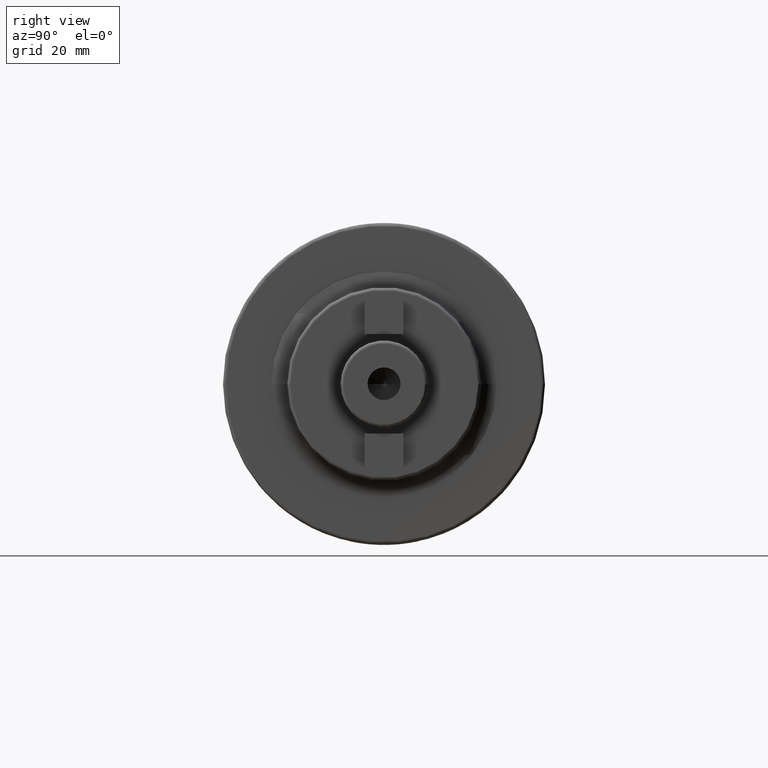
[diagram: clean part render]
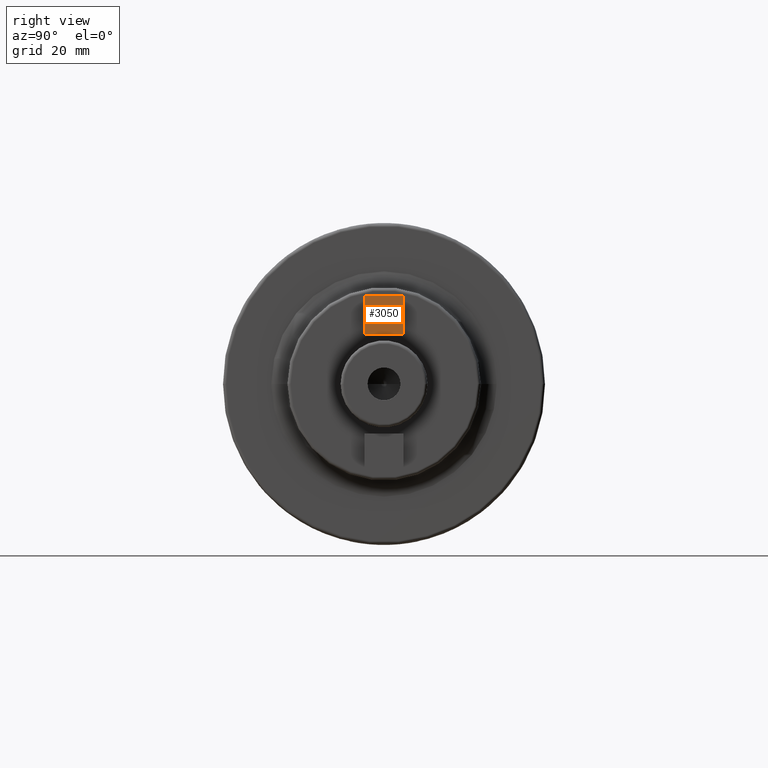
[diagram: same view with one face highlighted and labeled with its STEP entity id]
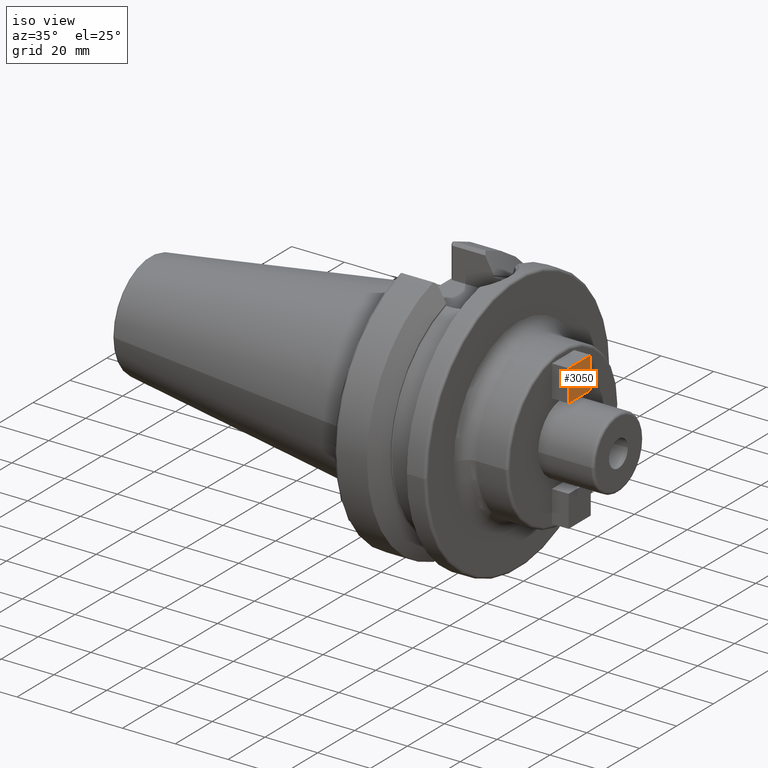
[diagram: same view with one face highlighted and labeled with its STEP entity id]
A machine part, right view. The second image highlights one B-rep face of the part: STEP entity #3050.
A second angle (iso view) of the same face is appended — the face is thin or edge-on in the first view.
In plain terms, the highlighted planar face has unit normal (1, 0, 0).
Its self-contained STEP definition (entity closure, byte-faithful):
#1050=DIRECTION('',(0.E0,0.E0,1.E0));
#1051=VECTOR('',#1050,1.2E1);
#1052=CARTESIAN_POINT('',(6.13E1,6.E0,1.55E1));
#1053=LINE('',#1052,#1051);
#1054=DIRECTION('',(0.E0,1.E0,0.E0));
#1055=VECTOR('',#1054,1.2E1);
#1056=CARTESIAN_POINT('',(6.13E1,-6.E0,1.55E1));
#1057=LINE('',#1056,#1055);
#1058=DIRECTION('',(0.E0,0.E0,-1.E0));
#1059=VECTOR('',#1058,1.2E1);
#1060=CARTESIAN_POINT('',(6.13E1,-6.E0,2.75E1));
#1061=LINE('',#1060,#1059);
#1062=DIRECTION('',(0.E0,-1.E0,0.E0));
#1063=VECTOR('',#1062,1.2E1);
#1064=CARTESIAN_POINT('',(6.13E1,6.E0,2.75E1));
#1065=LINE('',#1064,#1063);
#1537=CARTESIAN_POINT('',(6.13E1,6.E0,1.55E1));
#1538=CARTESIAN_POINT('',(6.13E1,6.E0,2.75E1));
#1539=VERTEX_POINT('',#1537);
#1540=VERTEX_POINT('',#1538);
#1541=CARTESIAN_POINT('',(6.13E1,-6.E0,2.75E1));
#1542=VERTEX_POINT('',#1541);
#1543=CARTESIAN_POINT('',(6.13E1,-6.E0,1.55E1));
#1544=VERTEX_POINT('',#1543);
#3035=CARTESIAN_POINT('',(6.13E1,0.E0,0.E0));
#3036=DIRECTION('',(1.E0,0.E0,0.E0));
#3037=DIRECTION('',(0.E0,0.E0,-1.E0));
#3038=AXIS2_PLACEMENT_3D('',#3035,#3036,#3037);
#3039=PLANE('',#3038);
#3041=ORIENTED_EDGE('',*,*,#3040,.F.);
#3043=ORIENTED_EDGE('',*,*,#3042,.F.);
#3045=ORIENTED_EDGE('',*,*,#3044,.F.);
#3047=ORIENTED_EDGE('',*,*,#3046,.F.);
#3048=EDGE_LOOP('',(#3041,#3043,#3045,#3047));
#3049=FACE_OUTER_BOUND('',#3048,.F.);
#3050=ADVANCED_FACE('',(#3049),#3039,.T.);
#3040=EDGE_CURVE('',#1539,#1540,#1053,.T.);
#3042=EDGE_CURVE('',#1544,#1539,#1057,.T.);
#3044=EDGE_CURVE('',#1542,#1544,#1061,.T.);
#3046=EDGE_CURVE('',#1540,#1542,#1065,.T.);